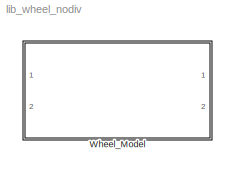
MODEL lib_wheel_nodiv
KIND library
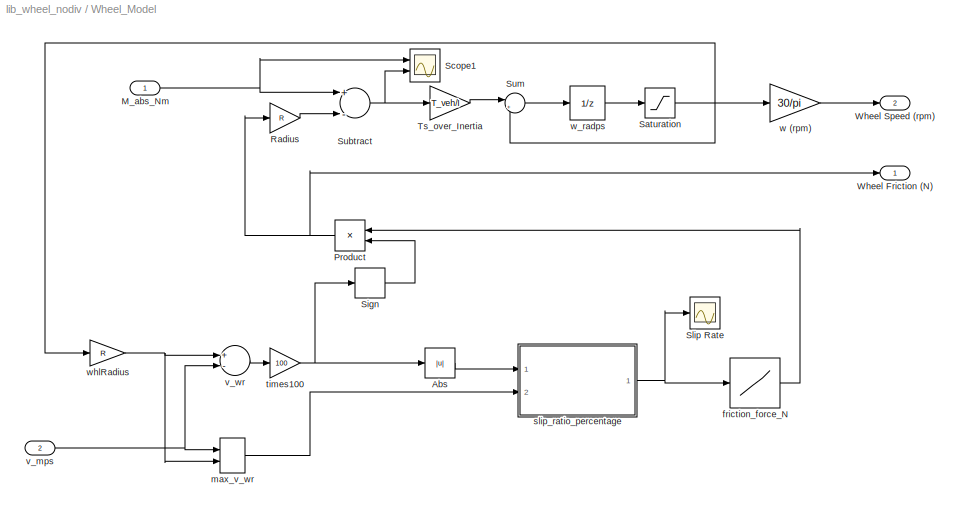
BLOCK [SubSystem] Wheel_Model
  FunctionWithSeparateData = off
  MaskHideContents = off
  MinAlgLoopOccurrences = off
  Opaque = off
  Ports = [2, 2]
  PropExecContextOutsideSubsystem = off
  RTWSystemCode = Auto
  RequestExecContextInheritance = off
  SID = 1
  TreatAsAtomicUnit = on
BLOCK [Abs] Wheel_Model/Abs
  SID = 81
  SaturateOnIntegerOverflow = off
BLOCK [Inport] Wheel_Model/M_abs_Nm
  IconDisplay = Port number
  SID = 79
BLOCK [Product] Wheel_Model/Product
  InputSameDT = off
  OutDataTypeStr = Inherit: Inherit via internal rule
  Ports = [2, 1]
  SID = 86
  SaturateOnIntegerOverflow = off
BLOCK [Gain] Wheel_Model/Radius
  Gain = R
  OutDataTypeStr = Inherit: Inherit via internal rule
  ParamDataTypeStr = Inherit: Inherit via internal rule
  SID = 87
  SaturateOnIntegerOverflow = off
BLOCK [Saturate] Wheel_Model/Saturation
  InputPortMap = u0
  LowerLimit = 0
  Ports = [1, 1]
  SID = 88
  UpperLimit = w_max
BLOCK [Scope] Wheel_Model/Scope1
  DataFormat = StructureWithTime
  Floating = off
  LimitDataPoints = off
  NumInputPorts = 2
  Ports = [2]
  SID = 113
  SampleTime = 0
  SaveName = ScopeData7
  YMax = 5~5
  YMin = -5~-5
  ZoomMode = yonly
BLOCK [Signum] Wheel_Model/Sign
  SID = 90
BLOCK [Scope] Wheel_Model/Slip Rate
  DataFormat = StructureWithTime
  Floating = off
  LimitDataPoints = off
  NumInputPorts = 1
  Ports = [1]
  SID = 91
  SampleTime = 0
  SaveName = ScopeData8
  ZoomMode = yonly
BLOCK [Sum] Wheel_Model/Subtract
  InputSameDT = off
  Inputs = +-
  OutDataTypeStr = Inherit: Inherit via internal rule
  Ports = [2, 1]
  SID = 92
  SaturateOnIntegerOverflow = off
BLOCK [Sum] Wheel_Model/Sum
  IconShape = round
  InputSameDT = off
  Inputs = |++
  OutDataTypeStr = Inherit: Inherit via internal rule
  Ports = [2, 1]
  SID = 93
  SaturateOnIntegerOverflow = off
BLOCK [Gain] Wheel_Model/Ts_over_Inertia
  Gain = T_veh/I
  OutDataTypeStr = Inherit: Inherit via internal rule
  ParamDataTypeStr = Inherit: Inherit via internal rule
  SID = 94
  SaturateOnIntegerOverflow = off
BLOCK [Outport] Wheel_Model/Wheel Friction (N)
  IconDisplay = Port number
  SID = 101
BLOCK [Outport] Wheel_Model/Wheel Speed (rpm)
  IconDisplay = Port number
  Port = 2
  SID = 102
BLOCK [Lookup] Wheel_Model/friction_force_N
  InputValues = Fc_table_x
  LookUpMeth = Interpolation-Use End Values
  OutDataTypeStr = Inherit: Inherit via back propagation
  OutMax = inf
  OutMin = 0
  SID = 83
  SaturateOnIntegerOverflow = off
  Table = Fc_table_y
BLOCK [MinMax] Wheel_Model/max_v_wr
  Function = max
  InputSameDT = off
  Inputs = 2
  Ports = [2, 1]
  SID = 95
  SaturateOnIntegerOverflow = off
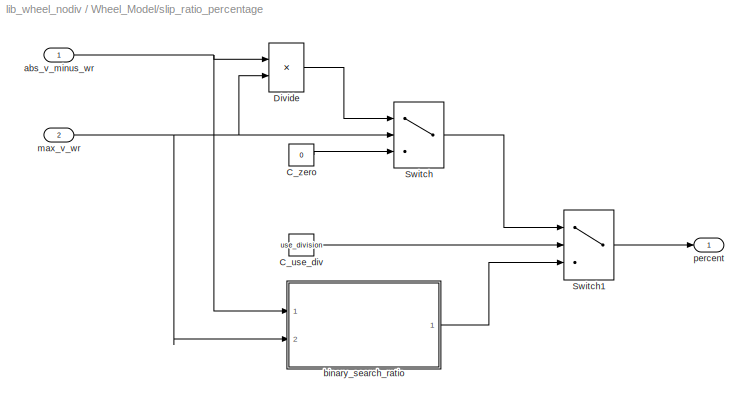
BLOCK [SubSystem] Wheel_Model/slip_ratio_percentage
  FunctionWithSeparateData = off
  MaskHideContents = off
  MinAlgLoopOccurrences = off
  Opaque = off
  Ports = [2, 1]
  PropExecContextOutsideSubsystem = off
  RTWSystemCode = Auto
  RequestExecContextInheritance = off
  SID = 103
BLOCK [Constant] Wheel_Model/slip_ratio_percentage/C_use_div
  SID = 1:115
  SampleTime = -1
  Value = use_division
BLOCK [Constant] Wheel_Model/slip_ratio_percentage/C_zero
  SID = 1:106
  SampleTime = -1
  Value = 0
BLOCK [Product] Wheel_Model/slip_ratio_percentage/Divide
  InputSameDT = off
  Inputs = */
  OutDataTypeStr = Inherit: Inherit via internal rule
  Ports = [2, 1]
  RndMeth = Floor
  SID = 1:107
  SaturateOnIntegerOverflow = off
BLOCK [Switch] Wheel_Model/slip_ratio_percentage/Switch
  Criteria = u2 > Threshold
  InputSameDT = off
  SID = 1:108
  SaturateOnIntegerOverflow = off
BLOCK [Switch] Wheel_Model/slip_ratio_percentage/Switch1
  Criteria = u2 > Threshold
  InputSameDT = off
  SID = 1:114
  SaturateOnIntegerOverflow = off
BLOCK [Inport] Wheel_Model/slip_ratio_percentage/abs_v_minus_wr
  IconDisplay = Port number
  SID = 1:104
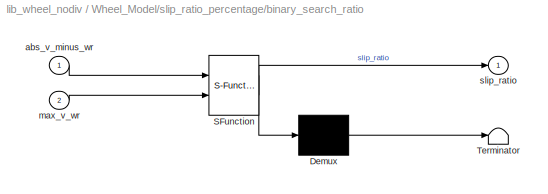
BLOCK [SubSystem] Wheel_Model/slip_ratio_percentage/binary_search_ratio
  ErrorFcn = Stateflow.Translate.translate
  FunctionWithSeparateData = off
  MaskDescription = Stateflow diagram
  MaskDisplay = plot(sf('Private','sfblk','xIcon'),sf('Private','sfblk','yIcon'));text(0.5,0,sf('Private', 'sfblk', 'tIcon'),'HorizontalAl','Center','VerticalAl','Bottom');
  MaskHideContents = off
  MaskIconFrame = off
  MaskIconOpaque = off
  MaskIconRotate = none
  MaskIconUnits = autoscale
  MaskPortRotate = default
  MaskSelfModifiable = on
  MaskType = Stateflow
  MinAlgLoopOccurrences = off
  Opaque = off
  PermitHierarchicalResolution = ExplicitOnly
  Ports = [2, 1]
  PropExecContextOutsideSubsystem = off
  RTWSystemCode = Auto
  RequestExecContextInheritance = off
  SID = 1:118
  TreatAsAtomicUnit = on
BLOCK [Demux] Wheel_Model/slip_ratio_percentage/binary_search_ratio/ Demux 
  Outputs = 1
  Ports = [1, 1]
  SID = 1:118::45
BLOCK [S-Function] Wheel_Model/slip_ratio_percentage/binary_search_ratio/ SFunction 
  EnableBusSupport = off
  FunctionName = sf_sfun
  PortCounts = [2 2]
  Ports = [2, 2]
  SID = 1:118::44
  Tag = Stateflow S-Function lib_wheel_nodiv 1
BLOCK [Terminator] Wheel_Model/slip_ratio_percentage/binary_search_ratio/ Terminator 
  SID = 1:118::47
BLOCK [Inport] Wheel_Model/slip_ratio_percentage/binary_search_ratio/abs_v_minus_wr
  IconDisplay = Port number
  SID = 1:118::17
BLOCK [Inport] Wheel_Model/slip_ratio_percentage/binary_search_ratio/max_v_wr
  IconDisplay = Port number
  Port = 2
  SID = 1:118::18
BLOCK [Outport] Wheel_Model/slip_ratio_percentage/binary_search_ratio/slip_ratio
  IconDisplay = Port number
  SID = 1:118::19
BLOCK [Inport] Wheel_Model/slip_ratio_percentage/max_v_wr
  IconDisplay = Port number
  Port = 2
  SID = 1:105
BLOCK [Outport] Wheel_Model/slip_ratio_percentage/percent
  IconDisplay = Port number
  SID = 1:109
BLOCK [Gain] Wheel_Model/times100
  Gain = 100
  OutDataTypeStr = Inherit: Inherit via internal rule
  ParamDataTypeStr = Inherit: Inherit via internal rule
  SID = 96
  SaturateOnIntegerOverflow = off
BLOCK [Inport] Wheel_Model/v_mps
  IconDisplay = Port number
  Port = 2
  SID = 80
BLOCK [Sum] Wheel_Model/v_wr
  InputSameDT = off
  Inputs = +-
  OutDataTypeStr = Inherit: Inherit via internal rule
  Ports = [2, 1]
  SID = 97
  SaturateOnIntegerOverflow = off
BLOCK [Gain] Wheel_Model/w (rpm)
  Gain = 30/pi
  OutDataTypeStr = Inherit: Inherit via internal rule
  OutMax = w_max*30/pi
  OutMin = 0
  ParamDataTypeStr = Inherit: Inherit via internal rule
  SID = 98
  SaturateOnIntegerOverflow = off
BLOCK [UnitDelay] Wheel_Model/w_radps
  InputProcessing = Elements as channels (sample based)
  SID = 99
  SampleTime = -1
  X0 = w0
BLOCK [Gain] Wheel_Model/whlRadius
  Gain = R
  OutDataTypeStr = Inherit: Inherit via internal rule
  OutMax = w_max/2
  OutMin = 0
  ParamDataTypeStr = Inherit: Inherit via internal rule
  SID = 100
  SaturateOnIntegerOverflow = off
LINE Wheel_Model/Abs:1 -> Wheel_Model/slip_ratio_percentage:1
NET Wheel_Model/M_abs_Nm:1 -> Wheel_Model/Scope1:1, Wheel_Model/Subtract:1
NET Wheel_Model/Product:1 -> Wheel_Model/Radius:1, Wheel_Model/Wheel Friction (N):1
LINE Wheel_Model/Radius:1 -> Wheel_Model/Subtract:2
NET Wheel_Model/Saturation:1 -> Wheel_Model/Sum:2, Wheel_Model/w (rpm):1, Wheel_Model/whlRadius:1
LINE Wheel_Model/Sign:1 -> Wheel_Model/Product:2
NET Wheel_Model/Subtract:1 -> Wheel_Model/Scope1:2, Wheel_Model/Ts_over_Inertia:1
LINE Wheel_Model/Sum:1 -> Wheel_Model/w_radps:1
LINE Wheel_Model/Ts_over_Inertia:1 -> Wheel_Model/Sum:1
LINE Wheel_Model/friction_force_N:1 -> Wheel_Model/Product:1
LINE Wheel_Model/max_v_wr:1 -> Wheel_Model/slip_ratio_percentage:2
LINE Wheel_Model/slip_ratio_percentage/C_use_div:1 -> Wheel_Model/slip_ratio_percentage/Switch1:2
LINE Wheel_Model/slip_ratio_percentage/C_zero:1 -> Wheel_Model/slip_ratio_percentage/Switch:3
LINE Wheel_Model/slip_ratio_percentage/Divide:1 -> Wheel_Model/slip_ratio_percentage/Switch:1
LINE Wheel_Model/slip_ratio_percentage/Switch1:1 -> Wheel_Model/slip_ratio_percentage/percent:1
LINE Wheel_Model/slip_ratio_percentage/Switch:1 -> Wheel_Model/slip_ratio_percentage/Switch1:1
NET Wheel_Model/slip_ratio_percentage/abs_v_minus_wr:1 -> Wheel_Model/slip_ratio_percentage/Divide:1, Wheel_Model/slip_ratio_percentage/binary_search_ratio:1
LINE Wheel_Model/slip_ratio_percentage/binary_search_ratio/ Demux :1 -> Wheel_Model/slip_ratio_percentage/binary_search_ratio/ Terminator :1
LINE Wheel_Model/slip_ratio_percentage/binary_search_ratio/ SFunction :1 -> Wheel_Model/slip_ratio_percentage/binary_search_ratio/ Demux :1
LINE Wheel_Model/slip_ratio_percentage/binary_search_ratio/ SFunction :2 -> Wheel_Model/slip_ratio_percentage/binary_search_ratio/slip_ratio:1
LINE Wheel_Model/slip_ratio_percentage/binary_search_ratio/abs_v_minus_wr:1 -> Wheel_Model/slip_ratio_percentage/binary_search_ratio/ SFunction :1
LINE Wheel_Model/slip_ratio_percentage/binary_search_ratio/max_v_wr:1 -> Wheel_Model/slip_ratio_percentage/binary_search_ratio/ SFunction :2
LINE Wheel_Model/slip_ratio_percentage/binary_search_ratio:1 -> Wheel_Model/slip_ratio_percentage/Switch1:3
NET Wheel_Model/slip_ratio_percentage/max_v_wr:1 -> Wheel_Model/slip_ratio_percentage/Divide:2, Wheel_Model/slip_ratio_percentage/Switch:2, Wheel_Model/slip_ratio_percentage/binary_search_ratio:2
NET Wheel_Model/slip_ratio_percentage:1 -> Wheel_Model/Slip Rate:1, Wheel_Model/friction_force_N:1
NET Wheel_Model/times100:1 -> Wheel_Model/Abs:1, Wheel_Model/Sign:1
NET Wheel_Model/v_mps:1 -> Wheel_Model/max_v_wr:1, Wheel_Model/v_wr:2
LINE Wheel_Model/v_wr:1 -> Wheel_Model/times100:1
LINE Wheel_Model/w (rpm):1 -> Wheel_Model/Wheel Speed (rpm):1
LINE Wheel_Model/w_radps:1 -> Wheel_Model/Saturation:1
NET Wheel_Model/whlRadius:1 -> Wheel_Model/max_v_wr:2, Wheel_Model/v_wr:1
note: NET lines group one-source signal fan-out (src -> all destinations, sorted); 1:1 wires keep LINE
CHART Wheel_Model/slip_ratio_percentage/binary_search_ratio states=0 transitions=25
